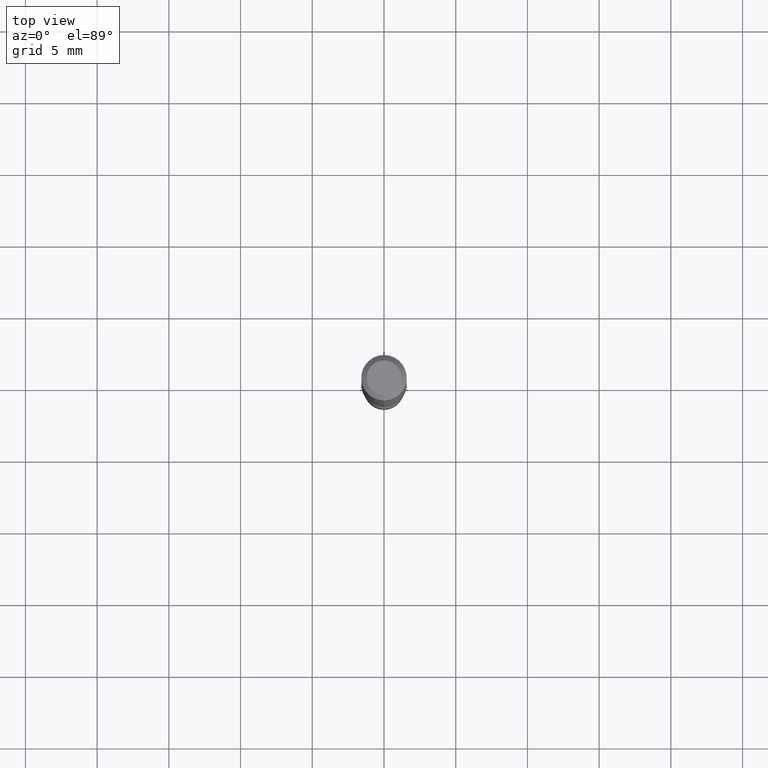
[diagram: clean part render]
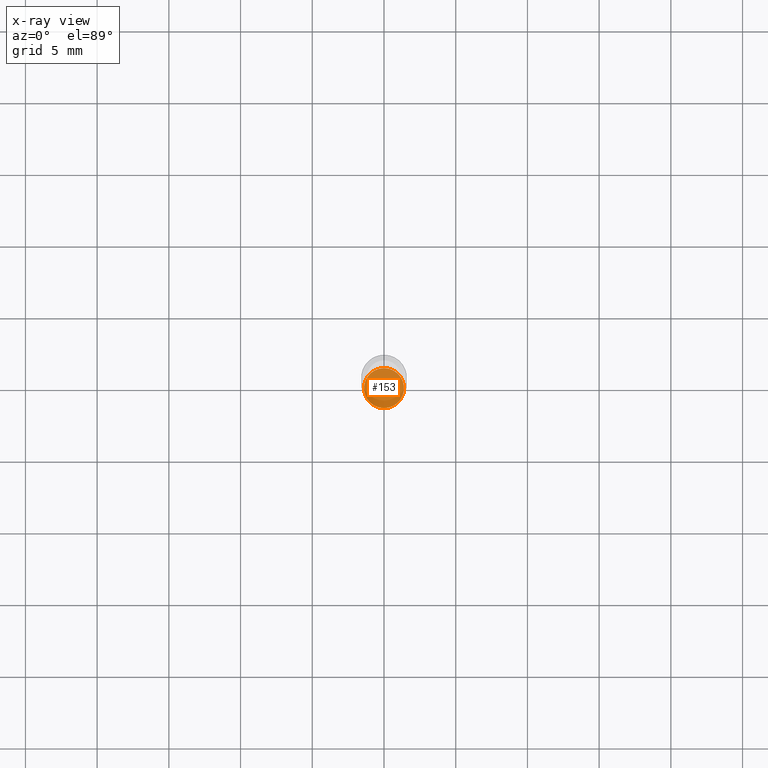
[diagram: x-ray — body ghosted, one internal face saturated and labeled with its STEP entity id]
A machine part, top view, then the same camera in x-ray: the body is ghosted and one INTERNAL B-rep face — a face not visible from any outside direction — is saturated and labeled: STEP entity #153.
In plain terms, the highlighted planar face has unit normal (-0, 0, 1).
Its self-contained STEP definition (entity closure, byte-faithful):
#34 = AXIS2_PLACEMENT_3D ( 'NONE', #507, #114, #252 ) ;
#36 = DIRECTION ( 'NONE',  ( -6.982962677686266711E-15, -1.000000000000000000, 4.966996352116842287E-15 ) ) ;
#45 = FACE_OUTER_BOUND ( 'NONE', #177, .T. ) ;
#80 = DIRECTION ( 'NONE',  ( -6.982962677686265922E-15, -1.000000000000000000, 3.491634899894602075E-15 ) ) ;
#81 = VERTEX_POINT ( 'NONE', #282 ) ;
#114 = DIRECTION ( 'NONE',  ( -2.445361575076029644E-29, 3.491634899894602075E-15, 1.000000000000000000 ) ) ;
#115 = CARTESIAN_POINT ( 'NONE',  ( 3.907985046680957798E-16, 0.05499999999999415773, -1.670000000000000151 ) ) ;
#134 = VERTEX_POINT ( 'NONE', #115 ) ;
#144 = EDGE_CURVE ( 'NONE', #81, #134, #223, .T. ) ;
#153 = ADVANCED_FACE ( 'NONE', ( #45 ), #380, .F. ) ;
#172 = AXIS2_PLACEMENT_3D ( 'NONE', #424, #213, #80 ) ;
#177 = EDGE_LOOP ( 'NONE', ( #247, #521 ) ) ;
#213 = DIRECTION ( 'NONE',  ( -2.445361575076029644E-29, 3.491634899894602075E-15, 1.000000000000000000 ) ) ;
#223 = CIRCLE ( 'NONE', #34, 0.05500000000000000028 ) ;
#247 = ORIENTED_EDGE ( 'NONE', *, *, #144, .F. ) ;
#252 = DIRECTION ( 'NONE',  ( -6.982962677686266711E-15, -1.000000000000000000, 4.966996352116842287E-15 ) ) ;
#282 = CARTESIAN_POINT ( 'NONE',  ( -3.840629472727037666E-16, -0.05500000000000581507, -1.669999999999999707 ) ) ;
#296 = DIRECTION ( 'NONE',  ( -2.445361575076029644E-29, 3.491634899894602075E-15, 1.000000000000000000 ) ) ;
#353 = AXIS2_PLACEMENT_3D ( 'NONE', #421, #296, #36 ) ;
#380 = PLANE ( 'NONE',  #172 ) ;
#381 = CIRCLE ( 'NONE', #353, 0.05500000000000000028 ) ;
#421 = CARTESIAN_POINT ( 'NONE',  ( 4.083753830376969796E-29, -5.831030282823985133E-15, -1.669999999999999929 ) ) ;
#424 = CARTESIAN_POINT ( 'NONE',  ( 3.840629472727855124E-16, 0.05499999999999417161, -1.670000000000000151 ) ) ;
#507 = CARTESIAN_POINT ( 'NONE',  ( 4.083753830376969796E-29, -5.831030282823985133E-15, -1.669999999999999929 ) ) ;
#521 = ORIENTED_EDGE ( 'NONE', *, *, #526, .F. ) ;
#526 = EDGE_CURVE ( 'NONE', #134, #81, #381, .T. ) ;